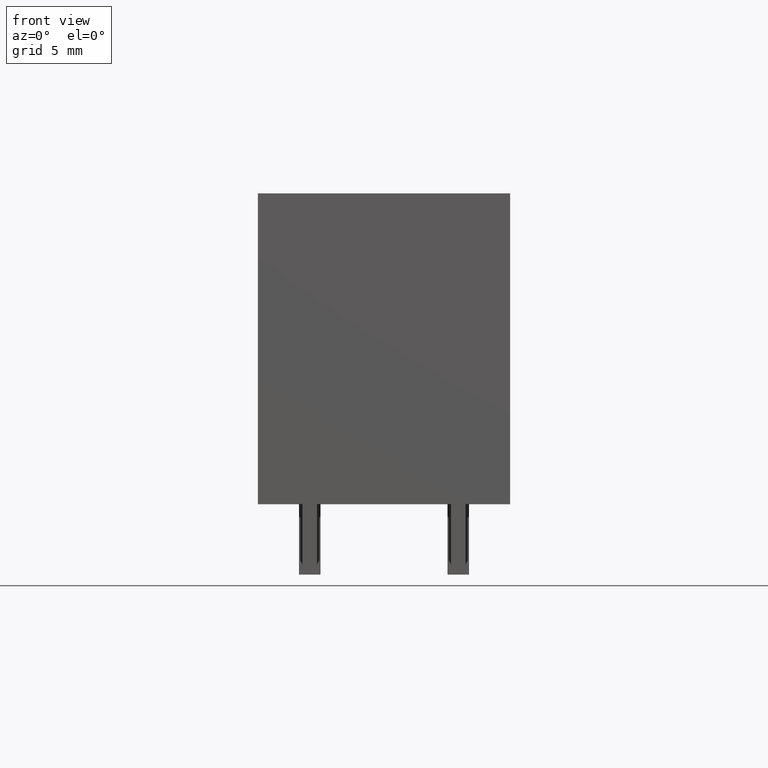
[diagram: clean part render]
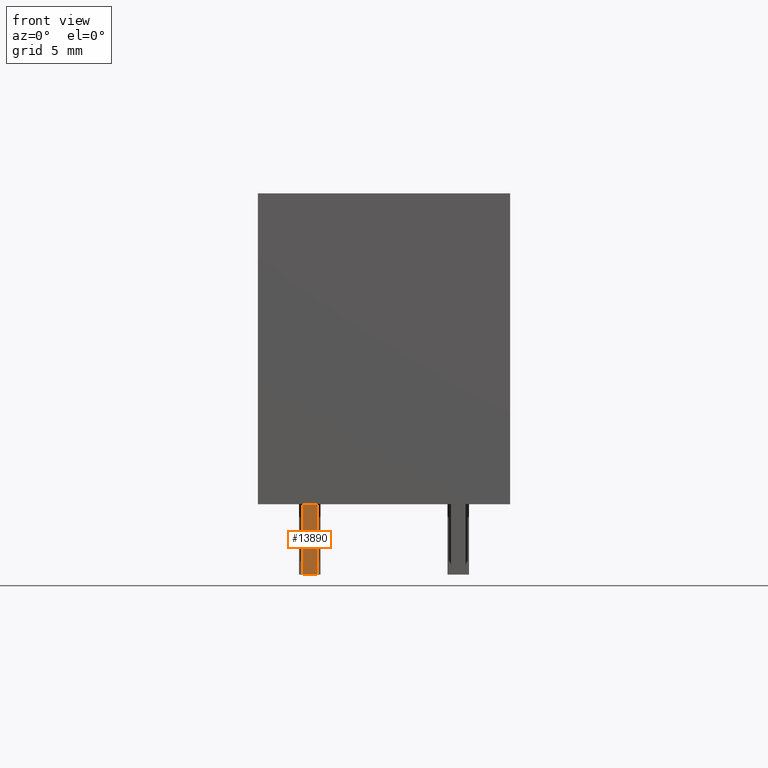
[diagram: same view with one face highlighted and labeled with its STEP entity id]
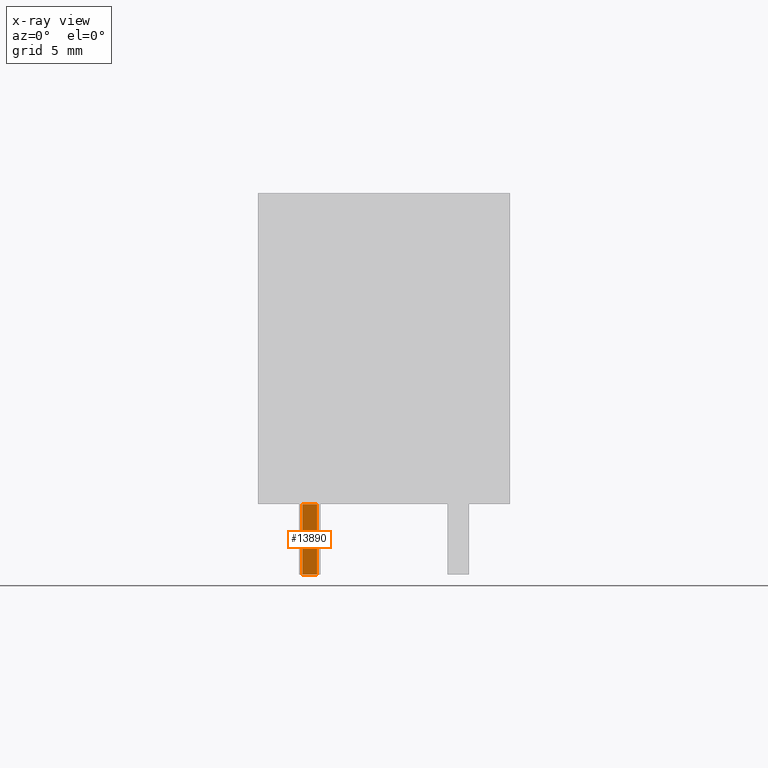
[diagram: x-ray of the same camera — body ghosted, the highlighted face saturated]
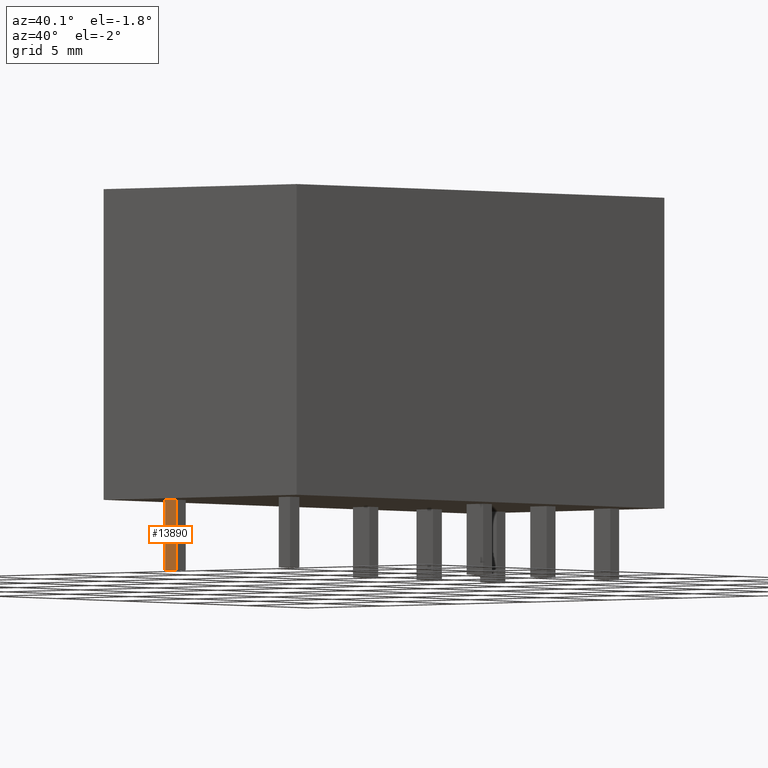
[diagram: same view with one face highlighted and labeled with its STEP entity id]
A machine part, front view. The second image highlights one B-rep face of the part: STEP entity #13890.
The next image is the same camera in x-ray: the body ghosted, the highlighted face saturated — about 0% of this face is hidden behind the body in this view.
A second angle (auxiliary view) of the same face is appended — the face is thin or edge-on in the first view.
In plain terms, the highlighted planar face has unit normal (-0, -1, 0).
Its self-contained STEP definition (entity closure, byte-faithful):
#2440=CARTESIAN_POINT('',(2.175,0.,0.));
#2450=DIRECTION('',(0.,-1.,0.));
#2460=VECTOR('',#2450,1.);
#2470=LINE('',#2440,#2460);
#2480=CARTESIAN_POINT('',(2.175,-3.425,0.));
#2490=VERTEX_POINT('',#2480);
#2500=CARTESIAN_POINT('',(2.175,-4.175,0.));
#2510=VERTEX_POINT('',#2500);
#2520=EDGE_CURVE('',#2490,#2510,#2470,.T.);
#13260=CARTESIAN_POINT('',(2.175,-4.175,3.6));
#13270=DIRECTION('',(0.,1.,0.));
#13280=VECTOR('',#13270,1.);
#13290=LINE('',#13260,#13280);
#13300=CARTESIAN_POINT('',(2.175,-4.175,3.6));
#13310=VERTEX_POINT('',#13300);
#13320=CARTESIAN_POINT('',(2.175,-3.425,3.6));
#13330=VERTEX_POINT('',#13320);
#13340=EDGE_CURVE('',#13310,#13330,#13290,.T.);
#13680=CARTESIAN_POINT('',(2.175,-4.175,0.));
#13690=DIRECTION('',(-1.,0.,0.));
#13700=DIRECTION('',(0.,1.,0.));
#13710=AXIS2_PLACEMENT_3D('',#13680,#13690,#13700);
#13720=PLANE('',#13710);
#13730=CARTESIAN_POINT('',(2.175,-3.425,0.));
#13740=DIRECTION('',(0.,0.,1.));
#13750=VECTOR('',#13740,1.);
#13760=LINE('',#13730,#13750);
#13770=EDGE_CURVE('',#2490,#13330,#13760,.T.);
#13780=ORIENTED_EDGE('',*,*,#13770,.F.);
#13790=ORIENTED_EDGE('',*,*,#13340,.T.);
#13800=CARTESIAN_POINT('',(2.175,-4.175,0.));
#13810=DIRECTION('',(0.,0.,1.));
#13820=VECTOR('',#13810,1.);
#13830=LINE('',#13800,#13820);
#13840=EDGE_CURVE('',#2510,#13310,#13830,.T.);
#13850=ORIENTED_EDGE('',*,*,#13840,.T.);
#13860=ORIENTED_EDGE('',*,*,#2520,.T.);
#13870=EDGE_LOOP('',(#13860,#13850,#13790,#13780));
#13880=FACE_OUTER_BOUND('',#13870,.T.);
#13890=ADVANCED_FACE('',(#13880),#13720,.T.);